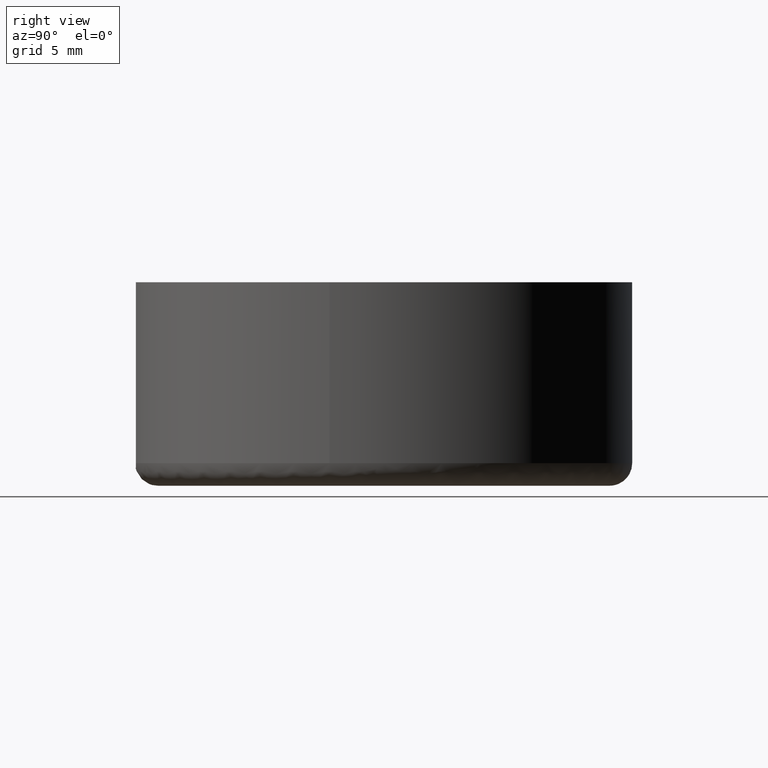
[diagram: clean part render]
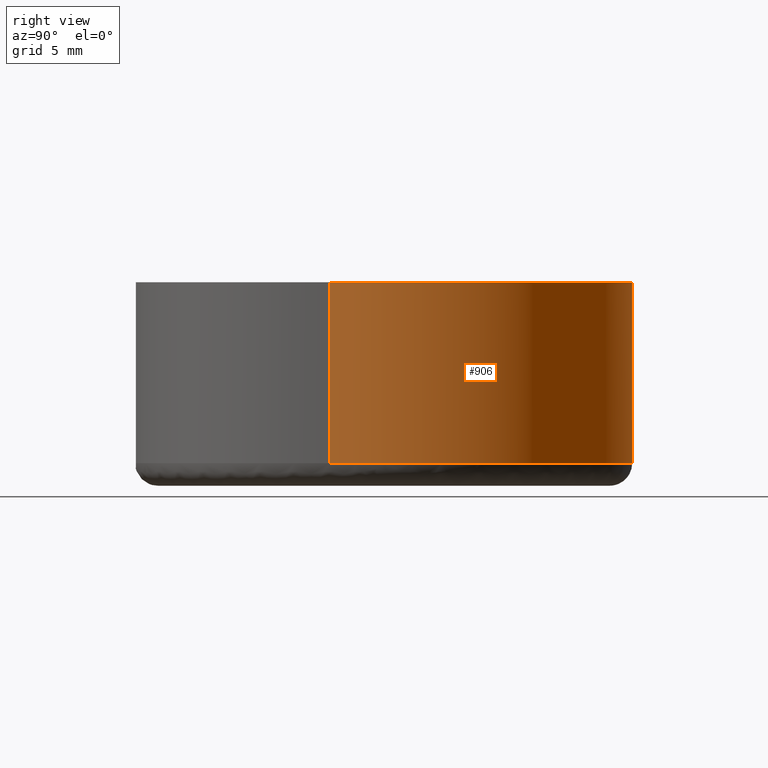
[diagram: same view with one face highlighted and labeled with its STEP entity id]
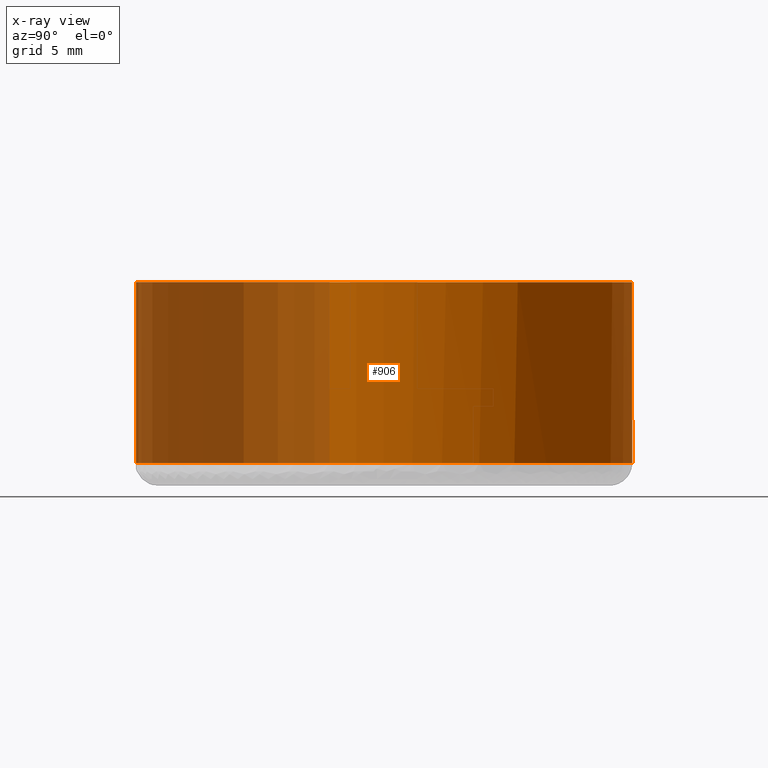
[diagram: x-ray of the same camera — body ghosted, the highlighted face saturated]
A machine part, right view. The second image highlights one B-rep face of the part: STEP entity #906.
The next image is the same camera in x-ray: the body ghosted, the highlighted face saturated — about 38% of this face is hidden behind the body in this view.
In plain terms, the highlighted face is a freeform B-spline surface patch.
Its self-contained STEP definition (entity closure, byte-faithful):
#705=CARTESIAN_POINT('',(10.735658999564700,-2.397003513767527,0.999999999999981));
#706=VERTEX_POINT('',#705);
#707=CARTESIAN_POINT('',(0.863043667407032,-10.966091173618230,1.000000000000017));
#708=VERTEX_POINT('',#707);
#722=CARTESIAN_POINT('',(10.735658980247090,-2.397003600287159,8.999999999999901));
#723=VERTEX_POINT('',#722);
#724=CARTESIAN_POINT('',(10.735658980247090,-2.397003600287159,8.999999999999901));
#725=CARTESIAN_POINT('',(10.735658999564700,-2.397003513767527,0.999999999999981));
#726=QUASI_UNIFORM_CURVE('',1,(#724,#725),.UNSPECIFIED.,.F.,.U.);
#727=EDGE_CURVE('',#723,#706,#726,.T.);
#729=CARTESIAN_POINT('',(0.863043746158326,-10.966091167420460,8.999999999999901));
#730=VERTEX_POINT('',#729);
#744=CARTESIAN_POINT('',(0.863043746158326,-10.966091167420460,8.999999999999901));
#745=CARTESIAN_POINT('',(0.863043667407032,-10.966091173618230,1.000000000000017));
#746=QUASI_UNIFORM_CURVE('',1,(#744,#745),.UNSPECIFIED.,.F.,.U.);
#747=EDGE_CURVE('',#730,#708,#746,.T.);
#752=CARTESIAN_POINT('',(0.863050053006293,-10.966090671064400,9.200000000002463));
#753=CARTESIAN_POINT('',(-10.103040618058110,-11.829140724070699,9.200000000002463));
#754=CARTESIAN_POINT('',(-10.966090671064400,-0.863050053006293,9.200000000002463));
#755=CARTESIAN_POINT('',(-11.829140724070699,10.103040618058110,9.200000000002463));
#756=CARTESIAN_POINT('',(-0.863050053006293,10.966090671064400,9.200000000002463));
#757=CARTESIAN_POINT('',(10.103040618058110,11.829140724070699,9.200000000002463));
#758=CARTESIAN_POINT('',(10.966090671064400,0.863050053006293,9.200000000002463));
#759=CARTESIAN_POINT('',(11.095739003543983,-0.784288203182901,9.200000000002463));
#760=CARTESIAN_POINT('',(10.735657434362894,-2.397010523967008,9.200000000002461));
#761=CARTESIAN_POINT('',(0.863050053006293,-10.966090671064400,0.794999999894772));
#762=CARTESIAN_POINT('',(-10.103040618058110,-11.829140724070699,0.794999999894772));
#763=CARTESIAN_POINT('',(-10.966090671064400,-0.863050053006293,0.794999999894772));
#764=CARTESIAN_POINT('',(-11.829140724070699,10.103040618058110,0.794999999894772));
#765=CARTESIAN_POINT('',(-0.863050053006293,10.966090671064400,0.794999999894772));
#766=CARTESIAN_POINT('',(10.103040618058110,11.829140724070699,0.794999999894772));
#767=CARTESIAN_POINT('',(10.966090671064400,0.863050053006293,0.794999999894772));
#768=CARTESIAN_POINT('',(11.095739003543983,-0.784288203182901,0.794999999894772));
#769=CARTESIAN_POINT('',(10.735657434362894,-2.397010523967008,0.794999999894772));
#777=(BOUNDED_SURFACE()B_SPLINE_SURFACE(2,1,((#752,#761),(#753,#762),(#754,#763),(#755,#764),(#756,#765),(#757,#766),(#758,#767),(#759,#768),(#760,#769)),.UNSPECIFIED.,.F.,.F.,.U.)B_SPLINE_SURFACE_WITH_KNOTS((3,2,2,2,3),(2,2),(0.0,18.225396744416170,36.450793488832353,54.676190233248519,58.321269582131762),(0.0,8.405000000107691),.UNSPECIFIED.)GEOMETRIC_REPRESENTATION_ITEM()RATIONAL_B_SPLINE_SURFACE(((1.0,1.0),(0.707106781186548,0.707106781186548),(1.0,1.0),(0.707106781186548,0.707106781186548),(1.0,1.0),(0.707106781186548,0.707106781186548),(1.0,1.0),(0.941421356237310,0.941421356237310),(0.906274169979695,0.906274169979695)))REPRESENTATION_ITEM('')SURFACE());
#778=CARTESIAN_POINT('',(11.0,0.0,1.0));
#779=VERTEX_POINT('',#778);
#780=CARTESIAN_POINT('',(11.0,0.0,1.0));
#781=CARTESIAN_POINT('',(11.000000000000005,-1.213077489482777,1.0));
#782=CARTESIAN_POINT('',(10.735658999564697,-2.397003513767527,0.999999999999981));
#790=(BOUNDED_CURVE()B_SPLINE_CURVE(2,(#780,#781,#782),.UNSPECIFIED.,.F.,.U.)B_SPLINE_CURVE_WITH_KNOTS((3,3),(0.500000000000000,0.537286560370751),.UNSPECIFIED.)CURVE()GEOMETRIC_REPRESENTATION_ITEM()RATIONAL_B_SPLINE_CURVE((1.0,0.956316077258115,0.925662740296602))REPRESENTATION_ITEM(''));
#791=EDGE_CURVE('',#779,#706,#790,.T.);
#792=ORIENTED_EDGE('',*,*,#791,.F.);
#793=CARTESIAN_POINT('',(-0.276431049877462,10.996526082116279,0.999999999897399));
#794=VERTEX_POINT('',#793);
#795=CARTESIAN_POINT('',(-0.276431049877462,10.996526082116279,0.999999999897399));
#796=CARTESIAN_POINT('',(-0.138237353357926,11.000000000000004,1.0));
#797=CARTESIAN_POINT('',(0.0,11.0,1.0));
#798=CARTESIAN_POINT('',(11.0,11.0,1.0));
#799=CARTESIAN_POINT('',(11.0,0.0,1.0));
#807=(BOUNDED_CURVE()B_SPLINE_CURVE(2,(#795,#796,#797,#798,#799),.UNSPECIFIED.,.F.,.U.)B_SPLINE_CURVE_WITH_KNOTS((3,2,3),(0.245579891769784,0.250000000000000,0.500000000000000),.UNSPECIFIED.)CURVE()GEOMETRIC_REPRESENTATION_ITEM()RATIONAL_B_SPLINE_CURVE((0.989826157681522,0.994821521091792,1.0,0.707106781186548,1.0))REPRESENTATION_ITEM(''));
#808=EDGE_CURVE('',#794,#779,#807,.T.);
#809=ORIENTED_EDGE('',*,*,#808,.F.);
#810=CARTESIAN_POINT('',(-11.0,0.0,1.0));
#811=VERTEX_POINT('',#810);
#812=CARTESIAN_POINT('',(-11.0,0.0,1.0));
#813=CARTESIAN_POINT('',(-11.0,10.726956637985680,1.0));
#814=CARTESIAN_POINT('',(-0.276431049877462,10.996526082116279,0.999999999897399));
#822=(BOUNDED_CURVE()B_SPLINE_CURVE(2,(#812,#813,#814),.UNSPECIFIED.,.F.,.U.)B_SPLINE_CURVE_WITH_KNOTS((3,3),(0.0,0.245579891769784),.UNSPECIFIED.)CURVE()GEOMETRIC_REPRESENTATION_ITEM()RATIONAL_B_SPLINE_CURVE((1.0,0.712285260094755,0.989826157681522))REPRESENTATION_ITEM(''));
#823=EDGE_CURVE('',#811,#794,#822,.T.);
#824=ORIENTED_EDGE('',*,*,#823,.F.);
#825=CARTESIAN_POINT('',(-10.996526082116279,-0.276431049877210,0.999999999897420));
#826=VERTEX_POINT('',#825);
#827=CARTESIAN_POINT('',(-10.996526082116281,-0.276431049877210,0.999999999897420));
#828=CARTESIAN_POINT('',(-11.0,-0.138237353357674,1.0));
#829=CARTESIAN_POINT('',(-11.0,0.0,1.0));
#837=(BOUNDED_CURVE()B_SPLINE_CURVE(2,(#827,#828,#829),.UNSPECIFIED.,.F.,.U.)B_SPLINE_CURVE_WITH_KNOTS((3,3),(0.995579891769792,1.0),.UNSPECIFIED.)CURVE()GEOMETRIC_REPRESENTATION_ITEM()RATIONAL_B_SPLINE_CURVE((0.989826157681540,0.994821521091802,1.0))REPRESENTATION_ITEM(''));
#838=EDGE_CURVE('',#826,#811,#837,.T.);
#839=ORIENTED_EDGE('',*,*,#838,.F.);
#840=CARTESIAN_POINT('',(0.863043667407032,-10.966091173618224,1.000000000000017));
#841=CARTESIAN_POINT('',(0.432187969468142,-11.000000000000002,1.0));
#842=CARTESIAN_POINT('',(0.0,-11.0,1.0));
#843=CARTESIAN_POINT('',(-10.726956637986108,-11.000000000000004,1.0));
#844=CARTESIAN_POINT('',(-10.996526082116283,-0.276431049877210,0.999999999897420));
#852=(BOUNDED_CURVE()B_SPLINE_CURVE(2,(#840,#841,#842,#843,#844),.UNSPECIFIED.,.F.,.U.)B_SPLINE_CURVE_WITH_KNOTS((3,2,3),(0.736331400453952,0.750000000000000,0.995579891769791),.UNSPECIFIED.)CURVE()GEOMETRIC_REPRESENTATION_ITEM()RATIONAL_B_SPLINE_CURVE((0.969723564491107,0.983986239529144,1.0,0.712285260094747,0.989826157681538))REPRESENTATION_ITEM(''));
#853=EDGE_CURVE('',#708,#826,#852,.T.);
#854=ORIENTED_EDGE('',*,*,#853,.F.);
#855=ORIENTED_EDGE('',*,*,#747,.F.);
#856=CARTESIAN_POINT('',(-11.0,0.0,8.999999999999901));
#857=VERTEX_POINT('',#856);
#858=CARTESIAN_POINT('',(0.863043746158326,-10.966091167420460,8.999999999999901));
#859=CARTESIAN_POINT('',(0.432188009026516,-10.999999999999996,8.999999999999901));
#860=CARTESIAN_POINT('',(0.0,-11.0,8.999999999999901));
#861=CARTESIAN_POINT('',(-11.0,-11.0,8.999999999999901));
#862=CARTESIAN_POINT('',(-11.0,0.0,8.999999999999901));
#870=(BOUNDED_CURVE()B_SPLINE_CURVE(2,(#858,#859,#860,#861,#862),.UNSPECIFIED.,.F.,.U.)B_SPLINE_CURVE_WITH_KNOTS((3,2,3),(0.736331399222893,0.750000000000000,1.0),.UNSPECIFIED.)CURVE()GEOMETRIC_REPRESENTATION_ITEM()RATIONAL_B_SPLINE_CURVE((0.969723561921979,0.983986238086868,1.0,0.707106781186548,1.0))REPRESENTATION_ITEM(''));
#871=EDGE_CURVE('',#730,#857,#870,.T.);
#872=ORIENTED_EDGE('',*,*,#871,.T.);
#873=CARTESIAN_POINT('',(11.0,0.0,8.999999999999901));
#874=VERTEX_POINT('',#873);
#875=CARTESIAN_POINT('',(-11.0,0.0,8.999999999999901));
#876=CARTESIAN_POINT('',(-11.0,11.0,8.999999999999901));
#877=CARTESIAN_POINT('',(0.0,11.0,8.999999999999901));
#878=CARTESIAN_POINT('',(11.0,11.0,8.999999999999901));
#879=CARTESIAN_POINT('',(11.0,0.0,8.999999999999901));
#887=(BOUNDED_CURVE()B_SPLINE_CURVE(2,(#875,#876,#877,#878,#879),.UNSPECIFIED.,.F.,.U.)B_SPLINE_CURVE_WITH_KNOTS((3,2,3),(0.0,0.250000000000000,0.500000000000000),.UNSPECIFIED.)CURVE()GEOMETRIC_REPRESENTATION_ITEM()RATIONAL_B_SPLINE_CURVE((1.0,0.707106781186548,1.0,0.707106781186548,1.0))REPRESENTATION_ITEM(''));
#888=EDGE_CURVE('',#857,#874,#887,.T.);
#889=ORIENTED_EDGE('',*,*,#888,.T.);
#890=CARTESIAN_POINT('',(11.0,0.0,8.999999999999901));
#891=CARTESIAN_POINT('',(11.000000000000002,-1.213077534346824,8.999999999999901));
#892=CARTESIAN_POINT('',(10.735658980247091,-2.397003600287159,8.999999999999901));
#900=(BOUNDED_CURVE()B_SPLINE_CURVE(2,(#890,#891,#892),.UNSPECIFIED.,.F.,.U.)B_SPLINE_CURVE_WITH_KNOTS((3,3),(0.500000000000000,0.537286561689504),.UNSPECIFIED.)CURVE()GEOMETRIC_REPRESENTATION_ITEM()RATIONAL_B_SPLINE_CURVE((1.0,0.956316075713099,0.925662738128303))REPRESENTATION_ITEM(''));
#901=EDGE_CURVE('',#874,#723,#900,.T.);
#902=ORIENTED_EDGE('',*,*,#901,.T.);
#903=ORIENTED_EDGE('',*,*,#727,.T.);
#904=EDGE_LOOP('',(#792,#809,#824,#839,#854,#855,#872,#889,#902,#903));
#905=FACE_OUTER_BOUND('',#904,.T.);
#906=ADVANCED_FACE('',(#905),#777,.T.);